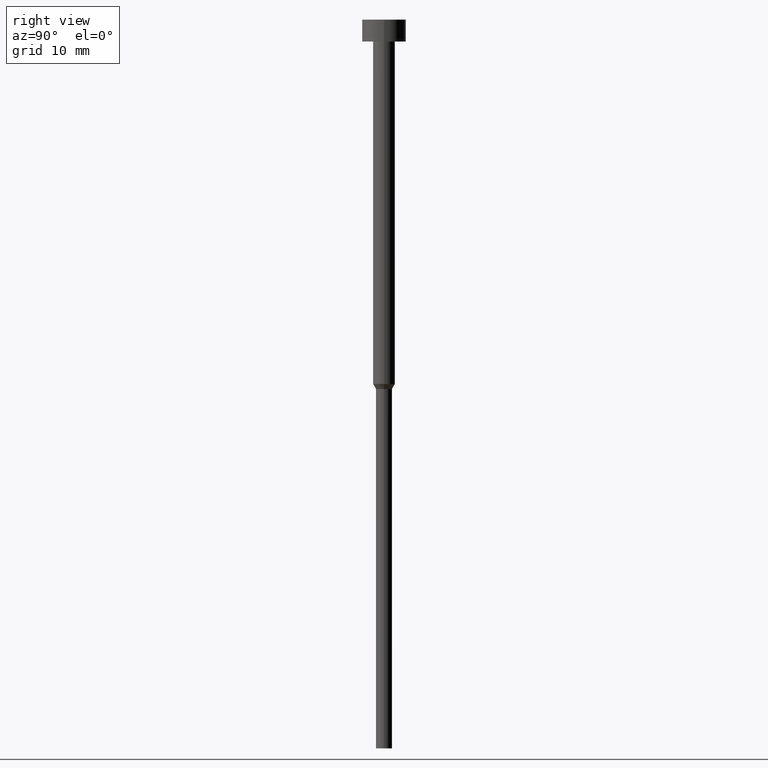
[diagram: clean part render]
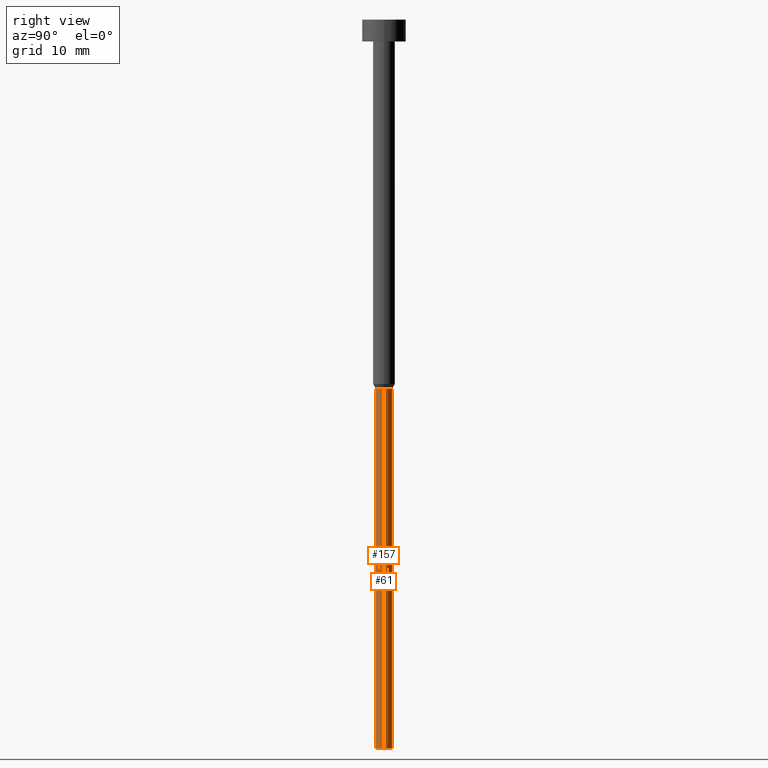
[diagram: same view with one multi-face feature highlighted, each face labeled with its STEP entity id]
A machine part, right view. The highlighted faces form ONE feature: a constant-radius fillet chain: 2 tangent blend faces with common blend radius 1.1 mm. The faces share edges in the B-rep.
Their STEP definitions:
[1] entity #157 (Cylinder):
#20 = CARTESIAN_POINT ( 'NONE',  ( 0.000000000000000000, 0.000000000000000000, -50.69282032302754715 ) ) ;
#21 = ORIENTED_EDGE ( 'NONE', *, *, #93, .T. ) ;
#26 = CARTESIAN_POINT ( 'NONE',  ( 1.100000000000000089, 0.000000000000000000, -50.69282032302754715 ) ) ;
#31 = DIRECTION ( 'NONE',  ( -0.000000000000000000, -0.000000000000000000, 1.000000000000000000 ) ) ;
#36 = DIRECTION ( 'NONE',  ( -0.000000000000000000, -0.000000000000000000, 1.000000000000000000 ) ) ;
#45 = VERTEX_POINT ( 'NONE', #26 ) ;
#53 = EDGE_CURVE ( 'NONE', #125, #271, #82, .T. ) ;
#56 = CARTESIAN_POINT ( 'NONE',  ( -1.100000000000000089, 1.347111479062088503E-16, -100.0000000000000000 ) ) ;
#59 = CIRCLE ( 'NONE', #238, 1.100000000000000089 ) ;
#63 = CARTESIAN_POINT ( 'NONE',  ( 1.100000000000000089, 0.000000000000000000, -100.0000000000000000 ) ) ;
#74 = DIRECTION ( 'NONE',  ( 1.000000000000000000, 0.000000000000000000, 0.000000000000000000 ) ) ;
#75 = EDGE_LOOP ( 'NONE', ( #355, #317, #21, #294 ) ) ;
#82 = LINE ( 'NONE', #163, #320 ) ;
#87 = AXIS2_PLACEMENT_3D ( 'NONE', #20, #212, #74 ) ;
#93 = EDGE_CURVE ( 'NONE', #268, #45, #351, .T. ) ;
#113 = CARTESIAN_POINT ( 'NONE',  ( 1.100000000000000089, 0.000000000000000000, 0.000000000000000000 ) ) ;
#125 = VERTEX_POINT ( 'NONE', #56 ) ;
#140 = CARTESIAN_POINT ( 'NONE',  ( 0.000000000000000000, 0.000000000000000000, 0.000000000000000000 ) ) ;
#144 = DIRECTION ( 'NONE',  ( 1.000000000000000000, 0.000000000000000000, 0.000000000000000000 ) ) ;
#157 = ADVANCED_FACE ( 'NONE', ( #287 ), #336, .T. ) ;
#163 = CARTESIAN_POINT ( 'NONE',  ( -1.100000000000000089, 1.347111479062088503E-16, 0.000000000000000000 ) ) ;
#185 = AXIS2_PLACEMENT_3D ( 'NONE', #140, #232, #335 ) ;
#197 = EDGE_CURVE ( 'NONE', #125, #268, #59, .T. ) ;
#212 = DIRECTION ( 'NONE',  ( -0.000000000000000000, -0.000000000000000000, 1.000000000000000000 ) ) ;
#227 = DIRECTION ( 'NONE',  ( -0.000000000000000000, -0.000000000000000000, 1.000000000000000000 ) ) ;
#232 = DIRECTION ( 'NONE',  ( -0.000000000000000000, -0.000000000000000000, 1.000000000000000000 ) ) ;
#238 = AXIS2_PLACEMENT_3D ( 'NONE', #285, #36, #144 ) ;
#268 = VERTEX_POINT ( 'NONE', #63 ) ;
#271 = VERTEX_POINT ( 'NONE', #308 ) ;
#285 = CARTESIAN_POINT ( 'NONE',  ( 0.000000000000000000, 0.000000000000000000, -100.0000000000000000 ) ) ;
#287 = FACE_OUTER_BOUND ( 'NONE', #75, .T. ) ;
#293 = VECTOR ( 'NONE', #227, 1000.000000000000000 ) ;
#294 = ORIENTED_EDGE ( 'NONE', *, *, #350, .F. ) ;
#308 = CARTESIAN_POINT ( 'NONE',  ( -1.100000000000000089, 1.347111479062088503E-16, -50.69282032302754715 ) ) ;
#317 = ORIENTED_EDGE ( 'NONE', *, *, #197, .T. ) ;
#320 = VECTOR ( 'NONE', #31, 1000.000000000000000 ) ;
#321 = CIRCLE ( 'NONE', #87, 1.100000000000000089 ) ;
#335 = DIRECTION ( 'NONE',  ( 1.000000000000000000, 0.000000000000000000, 0.000000000000000000 ) ) ;
#336 = CYLINDRICAL_SURFACE ( 'NONE', #185, 1.100000000000000089 ) ;
#350 = EDGE_CURVE ( 'NONE', #271, #45, #321, .T. ) ;
#351 = LINE ( 'NONE', #113, #293 ) ;
#355 = ORIENTED_EDGE ( 'NONE', *, *, #53, .F. ) ;
[2] entity #61 (Cylinder):
#24 = ORIENTED_EDGE ( 'NONE', *, *, #93, .F. ) ;
#26 = CARTESIAN_POINT ( 'NONE',  ( 1.100000000000000089, 0.000000000000000000, -50.69282032302754715 ) ) ;
#31 = DIRECTION ( 'NONE',  ( -0.000000000000000000, -0.000000000000000000, 1.000000000000000000 ) ) ;
#45 = VERTEX_POINT ( 'NONE', #26 ) ;
#53 = EDGE_CURVE ( 'NONE', #125, #271, #82, .T. ) ;
#56 = CARTESIAN_POINT ( 'NONE',  ( -1.100000000000000089, 1.347111479062088503E-16, -100.0000000000000000 ) ) ;
#58 = DIRECTION ( 'NONE',  ( -0.000000000000000000, -0.000000000000000000, 1.000000000000000000 ) ) ;
#61 = ADVANCED_FACE ( 'NONE', ( #273 ), #330, .T. ) ;
#63 = CARTESIAN_POINT ( 'NONE',  ( 1.100000000000000089, 0.000000000000000000, -100.0000000000000000 ) ) ;
#82 = LINE ( 'NONE', #163, #320 ) ;
#89 = DIRECTION ( 'NONE',  ( -0.000000000000000000, -0.000000000000000000, 1.000000000000000000 ) ) ;
#93 = EDGE_CURVE ( 'NONE', #268, #45, #351, .T. ) ;
#113 = CARTESIAN_POINT ( 'NONE',  ( 1.100000000000000089, 0.000000000000000000, 0.000000000000000000 ) ) ;
#125 = VERTEX_POINT ( 'NONE', #56 ) ;
#126 = CIRCLE ( 'NONE', #145, 1.100000000000000089 ) ;
#145 = AXIS2_PLACEMENT_3D ( 'NONE', #338, #89, #261 ) ;
#162 = DIRECTION ( 'NONE',  ( 1.000000000000000000, 0.000000000000000000, 0.000000000000000000 ) ) ;
#163 = CARTESIAN_POINT ( 'NONE',  ( -1.100000000000000089, 1.347111479062088503E-16, 0.000000000000000000 ) ) ;
#190 = ORIENTED_EDGE ( 'NONE', *, *, #326, .T. ) ;
#205 = CARTESIAN_POINT ( 'NONE',  ( 0.000000000000000000, 0.000000000000000000, -100.0000000000000000 ) ) ;
#210 = CIRCLE ( 'NONE', #245, 1.100000000000000089 ) ;
#220 = EDGE_LOOP ( 'NONE', ( #190, #319, #265, #24 ) ) ;
#227 = DIRECTION ( 'NONE',  ( -0.000000000000000000, -0.000000000000000000, 1.000000000000000000 ) ) ;
#245 = AXIS2_PLACEMENT_3D ( 'NONE', #205, #311, #259 ) ;
#256 = EDGE_CURVE ( 'NONE', #45, #271, #126, .T. ) ;
#259 = DIRECTION ( 'NONE',  ( 1.000000000000000000, 0.000000000000000000, 0.000000000000000000 ) ) ;
#261 = DIRECTION ( 'NONE',  ( 1.000000000000000000, 0.000000000000000000, 0.000000000000000000 ) ) ;
#265 = ORIENTED_EDGE ( 'NONE', *, *, #256, .F. ) ;
#268 = VERTEX_POINT ( 'NONE', #63 ) ;
#271 = VERTEX_POINT ( 'NONE', #308 ) ;
#273 = FACE_OUTER_BOUND ( 'NONE', #220, .T. ) ;
#293 = VECTOR ( 'NONE', #227, 1000.000000000000000 ) ;
#306 = CARTESIAN_POINT ( 'NONE',  ( 0.000000000000000000, 0.000000000000000000, 0.000000000000000000 ) ) ;
#308 = CARTESIAN_POINT ( 'NONE',  ( -1.100000000000000089, 1.347111479062088503E-16, -50.69282032302754715 ) ) ;
#311 = DIRECTION ( 'NONE',  ( -0.000000000000000000, -0.000000000000000000, 1.000000000000000000 ) ) ;
#319 = ORIENTED_EDGE ( 'NONE', *, *, #53, .T. ) ;
#320 = VECTOR ( 'NONE', #31, 1000.000000000000000 ) ;
#326 = EDGE_CURVE ( 'NONE', #268, #125, #210, .T. ) ;
#330 = CYLINDRICAL_SURFACE ( 'NONE', #332, 1.100000000000000089 ) ;
#332 = AXIS2_PLACEMENT_3D ( 'NONE', #306, #58, #162 ) ;
#338 = CARTESIAN_POINT ( 'NONE',  ( 0.000000000000000000, 0.000000000000000000, -50.69282032302754715 ) ) ;
#351 = LINE ( 'NONE', #113, #293 ) ;